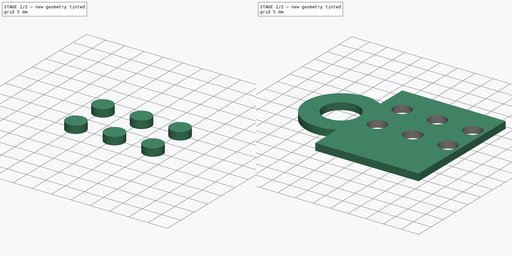
[diagram: build sequence overview — one tinted view per stage of 2, left to right]
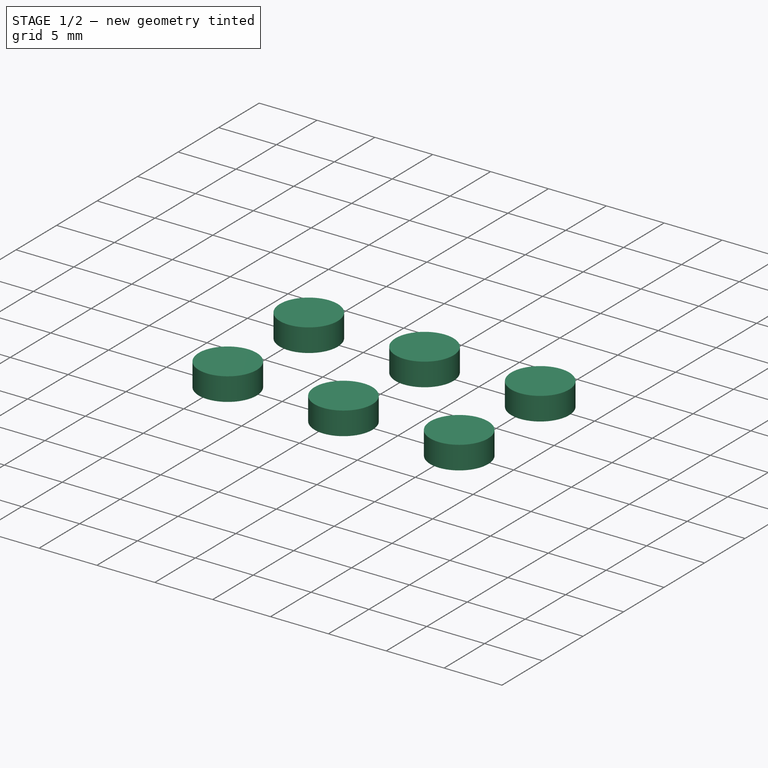
[diagram: stage 1 of 2 — iso view after this stage's code; geometry added in this stage tinted green]
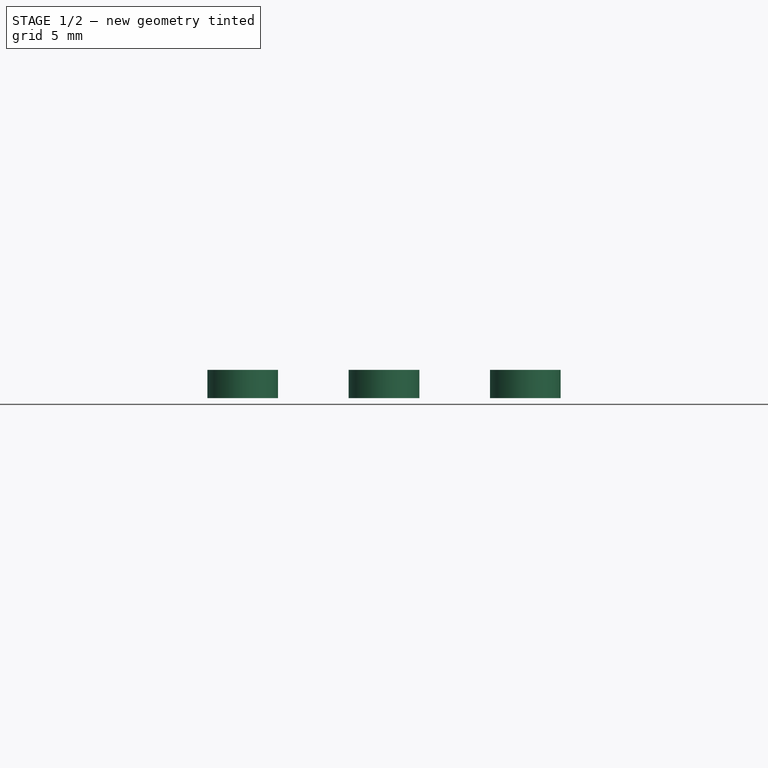
[diagram: stage 1 of 2 — front view after this stage's code; geometry added in this stage tinted green]
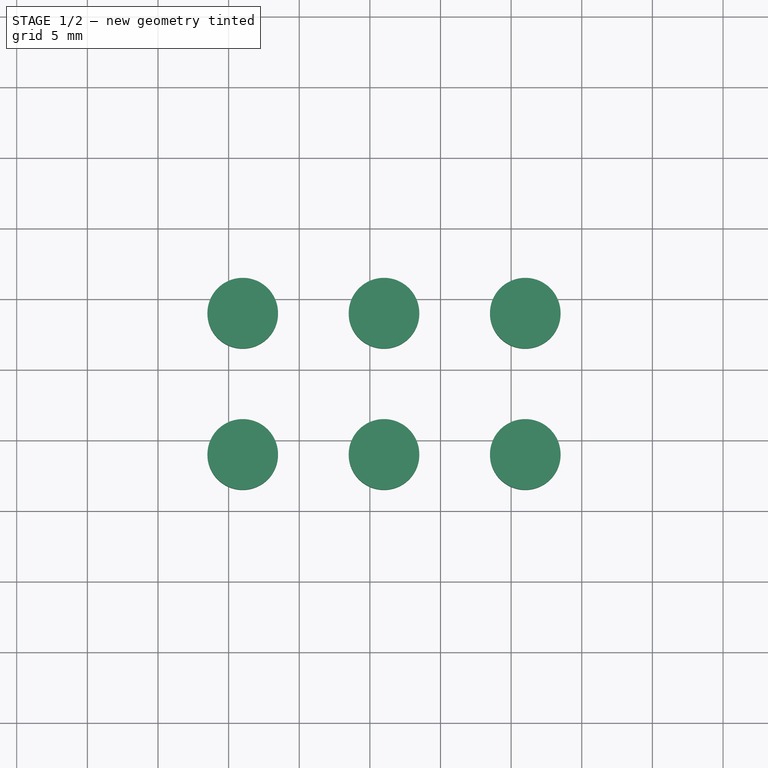
[diagram: stage 1 of 2 — top view after this stage's code; geometry added in this stage tinted green]
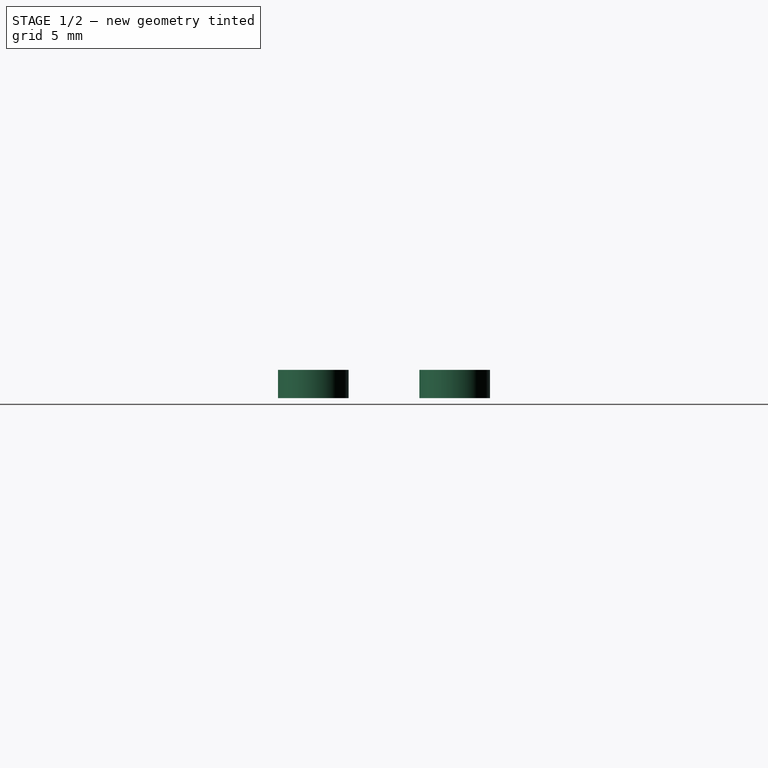
[diagram: stage 1 of 2 — right view after this stage's code; geometry added in this stage tinted green]
FCSTD DOCUMENT  (FreeCAD 0.17R13519 (Git))
Label: Tutorial-iPart.Step01
License: All rights reserved
LicenseURL: http://en.wikipedia.org/wiki/All_rights_reserved
objects: Sketcher::SketchObject×2, Part::Extrusion×2, Part::FeaturePython×1, Part::Cut×1
note: 6 computed .brp shape members not serialized (recipe doc carries the construction recipe); baked Part::Feature solids carry a one-line shape summary decoded from their .brp

FEATURE [Part::Extrusion] Extrude001
  Base = -> Sketch001
  Dir = (0,0,1)
  DirMode = 2
  FaceMakerClass = Part::FaceMakerBullseye
  LengthFwd = 2
  LengthRev = 0
  Solid = true
  Symmetric = false
FEATURE [Part::FeaturePython] Array  # Draft array (typed FeaturePython)
  Angle = 360
  ArrayType = 0
  Axis = (0,0,1)
  Base = -> Extrude001
  Center = (0,0,0)
  Fuse = false
  IntervalAxis = (0,0,0)
  IntervalX = (10,0,0)
  IntervalY = (0,-10,0)
  IntervalZ = (0,0,0)
  NumberPolar = 1
  NumberX = 3
  NumberY = 2
  NumberZ = 1
  expr: IntervalY.y = -IntervalX.x
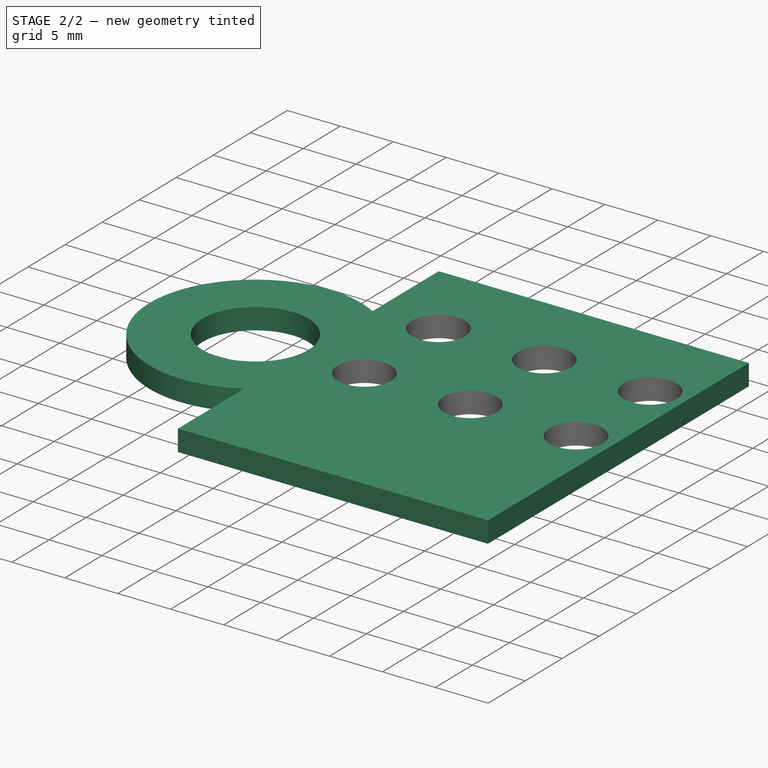
[diagram: stage 2 of 2 — iso view after this stage's code; geometry added in this stage tinted green]
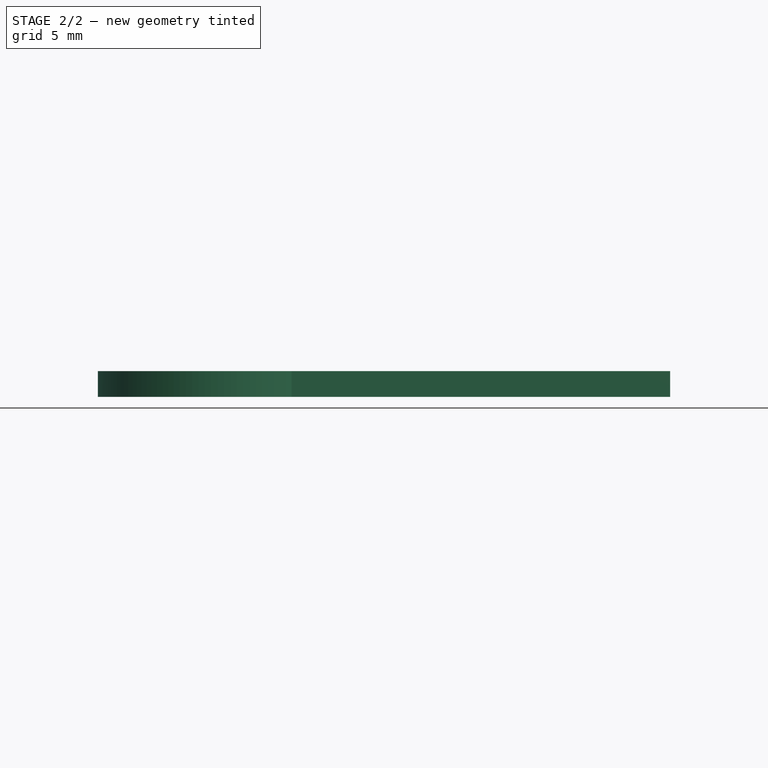
[diagram: stage 2 of 2 — front view after this stage's code; geometry added in this stage tinted green]
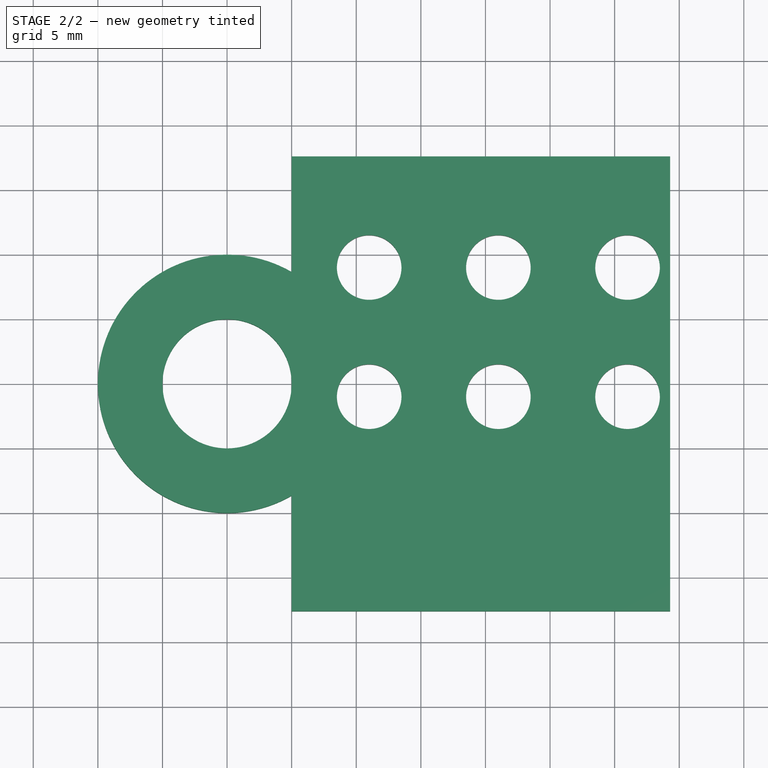
[diagram: stage 2 of 2 — top view after this stage's code; geometry added in this stage tinted green]
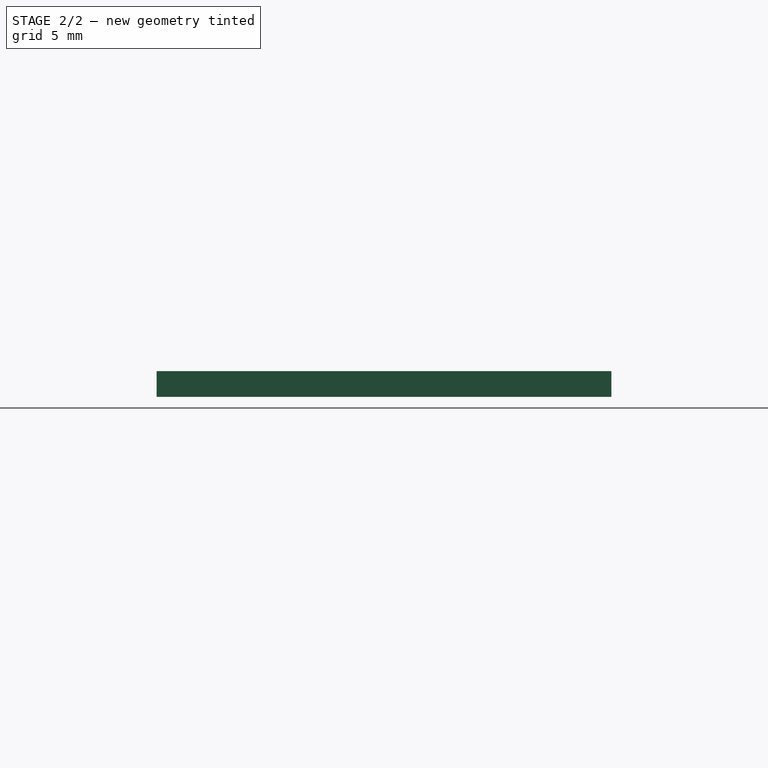
[diagram: stage 2 of 2 — right view after this stage's code; geometry added in this stage tinted green]
FEATURE [Sketcher::SketchObject] Sketch
  sketch-geometry (8):
    g0: Circle CenterX=-5 CenterY=0 CenterZ=0 NormalX=0 NormalY=0 NormalZ=1 AngleXU=0 Radius=5
    g1: ArcOfCircle CenterX=-5 CenterY=0 CenterZ=0 NormalX=0 NormalY=0 NormalZ=1 AngleXU=0 Radius=10 StartAngle=1.0472 EndAngle=5.23599
    g2: LineSegment StartX=0 StartY=8.66025 StartZ=0 EndX=0 EndY=17.6018 EndZ=0
    g3: LineSegment StartX=0 StartY=17.6018 StartZ=0 EndX=29.2948 EndY=17.6018 EndZ=0
    g4: LineSegment StartX=29.2948 StartY=17.6018 StartZ=0 EndX=29.2948 EndY=-17.6018 EndZ=0
    g5: LineSegment StartX=29.2948 StartY=-17.6018 StartZ=0 EndX=0 EndY=-17.6018 EndZ=0
    g6: LineSegment StartX=0 StartY=-17.6018 StartZ=0 EndX=0 EndY=-8.66025 EndZ=0
    g7: LineSegment [constr] StartX=-10 StartY=0 StartZ=0 EndX=-15 EndY=0 EndZ=0
  constraints (23):
    c: PointOnObject(g0,g-1)
    c: PointOnObject(g-1,g0)
    c: Coincident(g1,g0)
    c: PointOnObject(g1,g-2)
    c: PointOnObject(g1,g-2)
    c: Coincident(g1,g2)
    c: Coincident(g2,g3)
    c: Horizontal(g3)
    c: Coincident(g3,g4)
    c: Vertical(g4)
    c: Coincident(g4,g5)
    c: PointOnObject(g5,g-2)
    c: Horizontal(g5)
    c: Coincident(g5,g6)
    c: Coincident(g6,g1)
    c: PointOnObject(g2,g-2)
    c: Equal(g6,g2)
    c: PointOnObject(g7,g0)
    c: PointOnObject(g7,g1)
    c: PointOnObject(g7,g-1)
    c: PointOnObject(g7,g-1)
    c: Distance(g7,g-1) = 10
    c: Distance(g7) = 5
FEATURE [Sketcher::SketchObject] Sketch001
  MapMode = 2
  Support = -> [Sketch]
  sketch-geometry (2):
    g0: Circle CenterX=6 CenterY=9 CenterZ=0 NormalX=0 NormalY=0 NormalZ=1 AngleXU=0 Radius=2.5
    g1: LineSegment [constr] StartX=3.83107 StartY=10.2433 StartZ=0 EndX=8.16893 EndY=7.75673 EndZ=0
  constraints (6):
    c: PointOnObject(g1,g0)
    c: PointOnObject(g1,g0)
    c: PointOnObject(g0,g1)
    c: Distance(g1) = 5
    c: DistanceX(g-1,g0) = 6
    c: DistanceY(g-1,g0) = 9
FEATURE [Part::Extrusion] Extrude
  Base = -> Sketch
  Dir = (0,0,1)
  DirMode = 2
  FaceMakerClass = Part::FaceMakerBullseye
  LengthFwd = 2
  LengthRev = 0
  Solid = true
  Symmetric = false
FEATURE [Part::Cut] Cut
  Base = -> Extrude
  Tool = -> Array
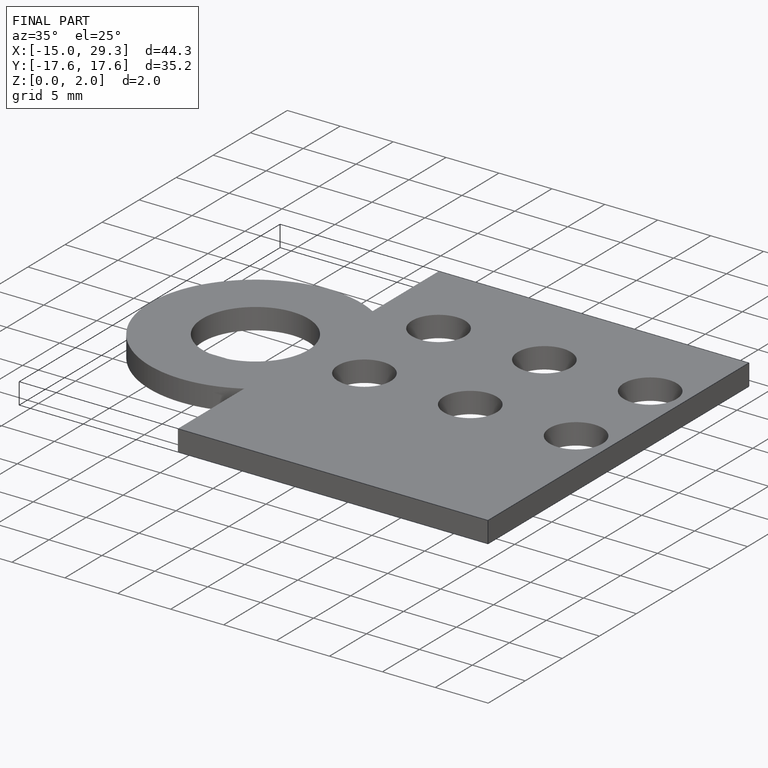
[diagram: finished part — iso view with bounding-box wireframe]
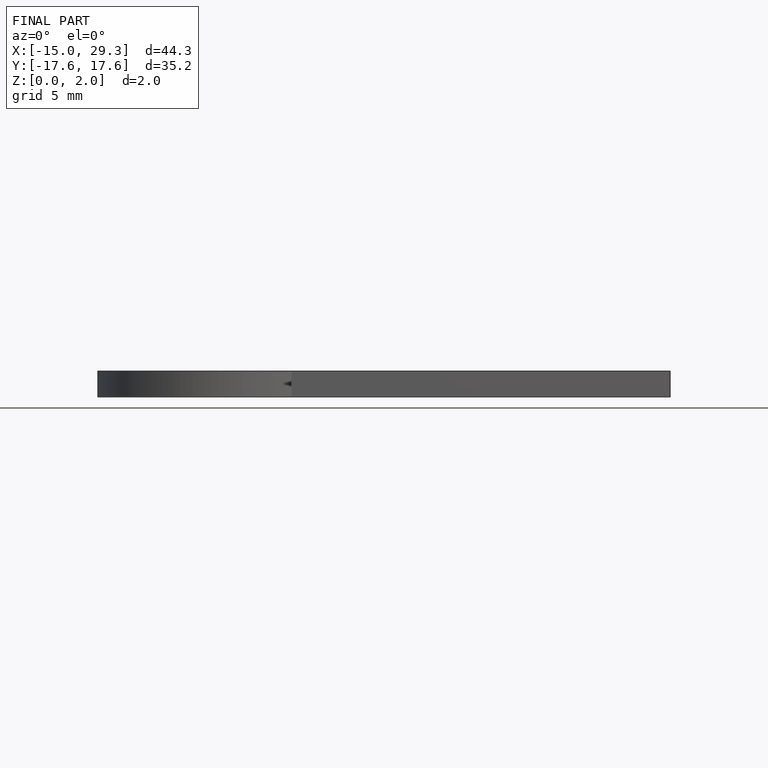
[diagram: finished part — front view with bounding-box wireframe]
